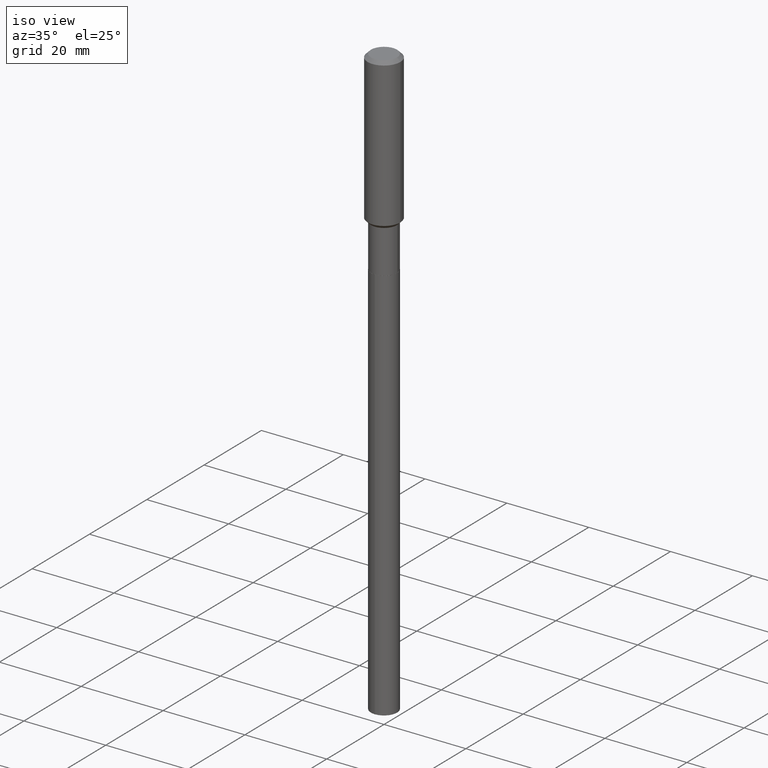
[diagram: clean part render]
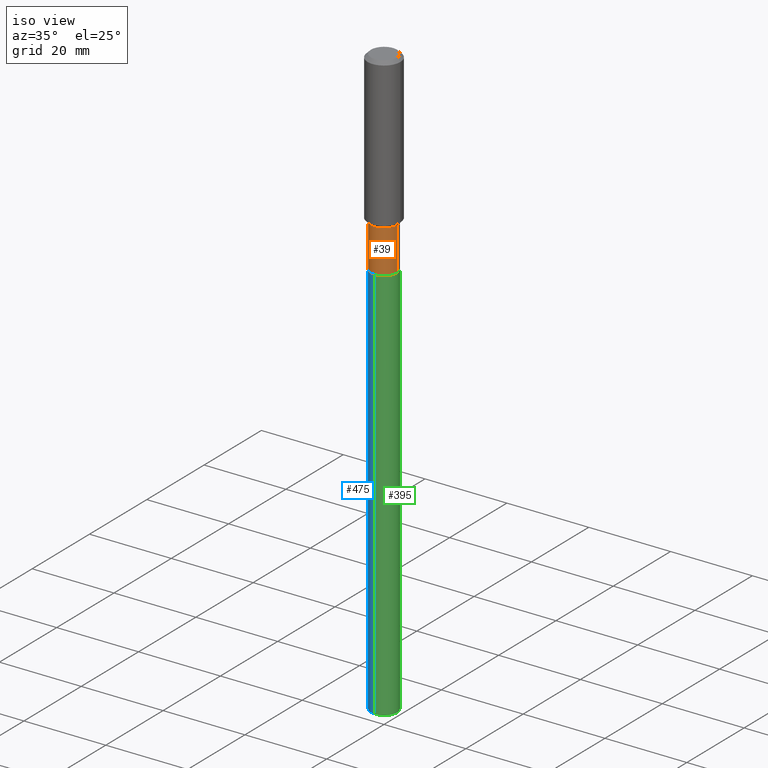
[diagram: same view with three faces highlighted in distinct colors, each labeled with its STEP entity id]
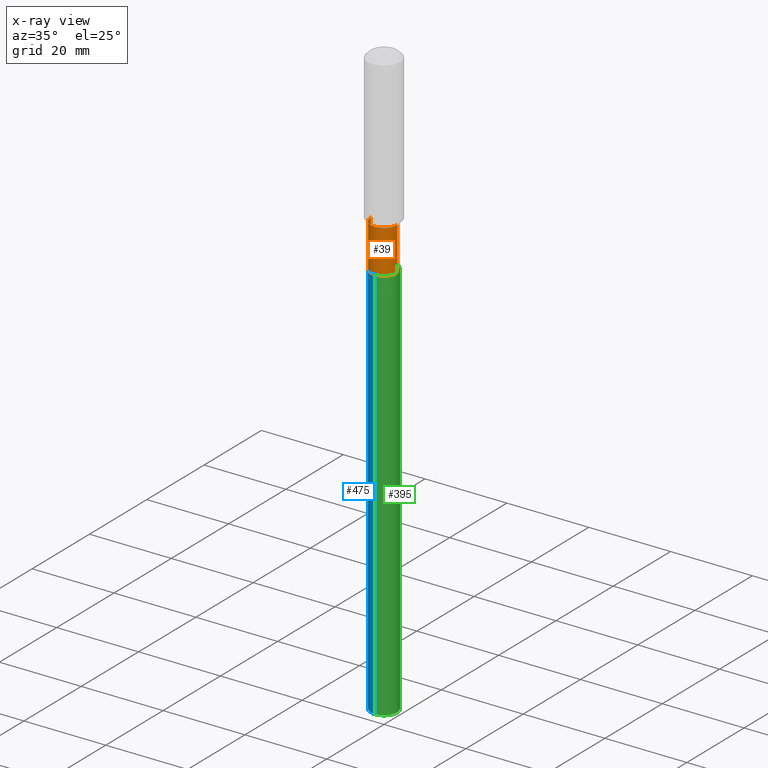
[diagram: x-ray of the same camera — body ghosted, the three highlighted faces saturated]
A machine part, iso view with three faces highlighted in distinct colors.
The next image is the same camera in x-ray (body ghosted, the three faces saturated) — at least one of them is partly hidden behind the body in this view.
Their STEP definitions:

[orange] entity #39 — the highlighted cylindrical surface (edge-blend (fillet) strip) has radius 3.2004 mm, axis along (-0, 0, 1).
#16 = EDGE_CURVE ( 'NONE', #255, #277, #411, .T. ) ;
#26 = DIRECTION ( 'NONE',  ( -2.445468806185136597E-29, 3.491481338843145583E-15, 1.000000000000000000 ) ) ;
#27 = AXIS2_PLACEMENT_3D ( 'NONE', #290, #328, #212 ) ;
#39 = ADVANCED_FACE ( 'NONE', ( #402 ), #476, .T. ) ;
#45 = EDGE_LOOP ( 'NONE', ( #265, #252, #458, #98 ) ) ;
#65 = DIRECTION ( 'NONE',  ( 1.000000000000000000, -6.982962677686262766E-15, 0.000000000000000000 ) ) ;
#66 = CARTESIAN_POINT ( 'NONE',  ( 0.1259999999999999454, -5.971131385689545098E-15, -1.458200000000000385 ) ) ;
#71 = EDGE_CURVE ( 'NONE', #159, #357, #125, .T. ) ;
#79 = CARTESIAN_POINT ( 'NONE',  ( 0.1259999999999999731, -8.798532973884693531E-16, 6.143982737502877445E-30 ) ) ;
#98 = ORIENTED_EDGE ( 'NONE', *, *, #71, .F. ) ;
#104 = DIRECTION ( 'NONE',  ( 1.000000000000000000, -6.982962677686265922E-15, 4.876176775795935793E-29 ) ) ;
#107 = AXIS2_PLACEMENT_3D ( 'NONE', #409, #26, #104 ) ;
#125 = CIRCLE ( 'NONE', #27, 0.1259999999999999454 ) ;
#159 = VERTEX_POINT ( 'NONE', #191 ) ;
#162 = LINE ( 'NONE', #79, #331 ) ;
#168 = VECTOR ( 'NONE', #254, 39.37007874015748143 ) ;
#174 = CARTESIAN_POINT ( 'NONE',  ( -0.1260000000000000009, -4.921174915321071275E-15, -1.873600000000000154 ) ) ;
#191 = CARTESIAN_POINT ( 'NONE',  ( -0.1259999999999999454, -4.921174915321071275E-15, -1.458200000000000385 ) ) ;
#212 = DIRECTION ( 'NONE',  ( 1.000000000000000000, -6.982962677686265922E-15, 0.000000000000000000 ) ) ;
#228 = AXIS2_PLACEMENT_3D ( 'NONE', #244, #431, #65 ) ;
#244 = CARTESIAN_POINT ( 'NONE',  ( 4.581830355268472060E-29, -6.541639436456518497E-15, -1.873600000000000154 ) ) ;
#252 = ORIENTED_EDGE ( 'NONE', *, *, #16, .T. ) ;
#254 = DIRECTION ( 'NONE',  ( -2.445468806185136877E-29, 3.491481338843145188E-15, 1.000000000000000000 ) ) ;
#255 = VERTEX_POINT ( 'NONE', #174 ) ;
#265 = ORIENTED_EDGE ( 'NONE', *, *, #284, .F. ) ;
#277 = VERTEX_POINT ( 'NONE', #399 ) ;
#284 = EDGE_CURVE ( 'NONE', #255, #159, #408, .T. ) ;
#290 = CARTESIAN_POINT ( 'NONE',  ( 3.565982613179166758E-29, -5.091278088301075745E-15, -1.458200000000000385 ) ) ;
#299 = CARTESIAN_POINT ( 'NONE',  ( -0.1259999999999999731, 8.952838470577260433E-16, -6.197858213721179906E-30 ) ) ;
#309 = DIRECTION ( 'NONE',  ( -2.445468806185136877E-29, 3.491481338843145188E-15, 1.000000000000000000 ) ) ;
#328 = DIRECTION ( 'NONE',  ( -2.445468806185136597E-29, 3.491481338843145583E-15, 1.000000000000000000 ) ) ;
#331 = VECTOR ( 'NONE', #309, 39.37007874015748143 ) ;
#357 = VERTEX_POINT ( 'NONE', #66 ) ;
#399 = CARTESIAN_POINT ( 'NONE',  ( 0.1260000000000000009, -7.421492733844987850E-15, -1.873600000000000154 ) ) ;
#402 = FACE_OUTER_BOUND ( 'NONE', #45, .T. ) ;
#408 = LINE ( 'NONE', #299, #168 ) ;
#409 = CARTESIAN_POINT ( 'NONE',  ( 0.000000000000000000, 0.000000000000000000, 0.000000000000000000 ) ) ;
#411 = CIRCLE ( 'NONE', #228, 0.1260000000000000009 ) ;
#431 = DIRECTION ( 'NONE',  ( -2.445468806185136597E-29, 3.491481338843145583E-15, 1.000000000000000000 ) ) ;
#458 = ORIENTED_EDGE ( 'NONE', *, *, #480, .T. ) ;
#476 = CYLINDRICAL_SURFACE ( 'NONE', #107, 0.1259999999999999731 ) ;
#480 = EDGE_CURVE ( 'NONE', #277, #357, #162, .T. ) ;

[blue] entity #475 — the highlighted cylindrical surface (edge-blend (fillet) strip) has radius 3.2004 mm, axis along (-0, 0, 1).
#10 = VERTEX_POINT ( 'NONE', #439 ) ;
#25 = DIRECTION ( 'NONE',  ( -2.445505131689161553E-29, 3.491429318653862647E-15, 1.000000000000000000 ) ) ;
#75 = CYLINDRICAL_SURFACE ( 'NONE', #189, 0.1260000000000000009 ) ;
#88 = VERTEX_POINT ( 'NONE', #370 ) ;
#101 = EDGE_CURVE ( 'NONE', #279, #10, #197, .T. ) ;
#105 = LINE ( 'NONE', #294, #276 ) ;
#116 = ORIENTED_EDGE ( 'NONE', *, *, #101, .T. ) ;
#144 = CARTESIAN_POINT ( 'NONE',  ( -8.798532973884236978E-16, -0.1260000000000065512, -1.874099999999999655 ) ) ;
#149 = CIRCLE ( 'NONE', #488, 0.1260000000000000009 ) ;
#166 = ORIENTED_EDGE ( 'NONE', *, *, #319, .F. ) ;
#180 = DIRECTION ( 'NONE',  ( -2.445505131689161553E-29, 3.491429318653862647E-15, 1.000000000000000000 ) ) ;
#186 = FACE_OUTER_BOUND ( 'NONE', #426, .T. ) ;
#189 = AXIS2_PLACEMENT_3D ( 'NONE', #230, #25, #456 ) ;
#197 = CIRCLE ( 'NONE', #314, 0.1260000000000000009 ) ;
#200 = ORIENTED_EDGE ( 'NONE', *, *, #422, .T. ) ;
#230 = CARTESIAN_POINT ( 'NONE',  ( 4.583053089671564861E-29, -6.543385177125940001E-15, -1.874100000000000099 ) ) ;
#259 = DIRECTION ( 'NONE',  ( -2.445505131689161553E-29, 3.491429318653862647E-15, 1.000000000000000000 ) ) ;
#276 = VECTOR ( 'NONE', #259, 39.37007874015748143 ) ;
#279 = VERTEX_POINT ( 'NONE', #443 ) ;
#282 = VERTEX_POINT ( 'NONE', #335 ) ;
#286 = DIRECTION ( 'NONE',  ( -2.445505131689161553E-29, 3.491429318653862647E-15, 1.000000000000000000 ) ) ;
#289 = DIRECTION ( 'NONE',  ( -6.982962677686265922E-15, -1.000000000000000000, 4.336266656609941617E-15 ) ) ;
#291 = CARTESIAN_POINT ( 'NONE',  ( 4.583053089671564861E-29, -6.543385177125940001E-15, -1.874100000000000099 ) ) ;
#294 = CARTESIAN_POINT ( 'NONE',  ( 8.952838470577719944E-16, 0.1259999999999934506, -1.874100000000000543 ) ) ;
#307 = EDGE_CURVE ( 'NONE', #88, #282, #149, .T. ) ;
#308 = ORIENTED_EDGE ( 'NONE', *, *, #307, .F. ) ;
#314 = AXIS2_PLACEMENT_3D ( 'NONE', #332, #286, #434 ) ;
#319 = EDGE_CURVE ( 'NONE', #279, #88, #105, .T. ) ;
#332 = CARTESIAN_POINT ( 'NONE',  ( 1.393531834803985762E-28, -1.989554408113978401E-14, -5.698367280072516472 ) ) ;
#335 = CARTESIAN_POINT ( 'NONE',  ( -8.798532973884236978E-16, -0.1260000000000065512, -1.874099999999999655 ) ) ;
#342 = VECTOR ( 'NONE', #445, 39.37007874015748143 ) ;
#370 = CARTESIAN_POINT ( 'NONE',  ( 8.952838470578662633E-16, 0.1259999999999934783, -1.874100000000000543 ) ) ;
#422 = EDGE_CURVE ( 'NONE', #10, #282, #483, .T. ) ;
#426 = EDGE_LOOP ( 'NONE', ( #166, #116, #200, #308 ) ) ;
#434 = DIRECTION ( 'NONE',  ( -6.982962677686265922E-15, -1.000000000000000000, 0.000000000000000000 ) ) ;
#439 = CARTESIAN_POINT ( 'NONE',  ( -8.798532973883302178E-16, -0.1260000000000199016, -5.698367280072516472 ) ) ;
#443 = CARTESIAN_POINT ( 'NONE',  ( 8.952838470578656717E-16, 0.1259999999999801279, -5.698367280072516472 ) ) ;
#445 = DIRECTION ( 'NONE',  ( -2.445505131689161553E-29, 3.491429318653862647E-15, 1.000000000000000000 ) ) ;
#456 = DIRECTION ( 'NONE',  ( -6.982962677686265922E-15, -1.000000000000000000, 4.336266656609941617E-15 ) ) ;
#475 = ADVANCED_FACE ( 'NONE', ( #186 ), #75, .T. ) ;
#483 = LINE ( 'NONE', #144, #342 ) ;
#488 = AXIS2_PLACEMENT_3D ( 'NONE', #291, #180, #289 ) ;

[green] entity #395 — the highlighted cylindrical surface (edge-blend (fillet) strip) has radius 3.2004 mm, axis along (-0, 0, 1).
#10 = VERTEX_POINT ( 'NONE', #439 ) ;
#28 = DIRECTION ( 'NONE',  ( -6.982962677686265922E-15, -1.000000000000000000, 4.336266656609941617E-15 ) ) ;
#31 = DIRECTION ( 'NONE',  ( -2.445505131689161553E-29, 3.491429318653862647E-15, 1.000000000000000000 ) ) ;
#34 = CARTESIAN_POINT ( 'NONE',  ( 1.393531834803985762E-28, -1.989554408113978401E-14, -5.698367280072516472 ) ) ;
#60 = AXIS2_PLACEMENT_3D ( 'NONE', #371, #31, #28 ) ;
#72 = CYLINDRICAL_SURFACE ( 'NONE', #60, 0.1260000000000000009 ) ;
#85 = ORIENTED_EDGE ( 'NONE', *, *, #422, .F. ) ;
#88 = VERTEX_POINT ( 'NONE', #370 ) ;
#105 = LINE ( 'NONE', #294, #276 ) ;
#132 = ORIENTED_EDGE ( 'NONE', *, *, #441, .F. ) ;
#144 = CARTESIAN_POINT ( 'NONE',  ( -8.798532973884236978E-16, -0.1260000000000065512, -1.874099999999999655 ) ) ;
#165 = ORIENTED_EDGE ( 'NONE', *, *, #355, .T. ) ;
#224 = DIRECTION ( 'NONE',  ( -6.982962677686265922E-15, -1.000000000000000000, 0.000000000000000000 ) ) ;
#225 = DIRECTION ( 'NONE',  ( -2.445505131689161553E-29, 3.491429318653862647E-15, 1.000000000000000000 ) ) ;
#259 = DIRECTION ( 'NONE',  ( -2.445505131689161553E-29, 3.491429318653862647E-15, 1.000000000000000000 ) ) ;
#260 = FACE_OUTER_BOUND ( 'NONE', #310, .T. ) ;
#276 = VECTOR ( 'NONE', #259, 39.37007874015748143 ) ;
#279 = VERTEX_POINT ( 'NONE', #443 ) ;
#280 = ORIENTED_EDGE ( 'NONE', *, *, #319, .T. ) ;
#282 = VERTEX_POINT ( 'NONE', #335 ) ;
#294 = CARTESIAN_POINT ( 'NONE',  ( 8.952838470577719944E-16, 0.1259999999999934506, -1.874100000000000543 ) ) ;
#310 = EDGE_LOOP ( 'NONE', ( #165, #280, #132, #85 ) ) ;
#319 = EDGE_CURVE ( 'NONE', #279, #88, #105, .T. ) ;
#335 = CARTESIAN_POINT ( 'NONE',  ( -8.798532973884236978E-16, -0.1260000000000065512, -1.874099999999999655 ) ) ;
#342 = VECTOR ( 'NONE', #445, 39.37007874015748143 ) ;
#343 = CARTESIAN_POINT ( 'NONE',  ( 4.583053089671564861E-29, -6.543385177125940001E-15, -1.874100000000000099 ) ) ;
#355 = EDGE_CURVE ( 'NONE', #10, #279, #412, .T. ) ;
#363 = AXIS2_PLACEMENT_3D ( 'NONE', #34, #449, #224 ) ;
#370 = CARTESIAN_POINT ( 'NONE',  ( 8.952838470578662633E-16, 0.1259999999999934783, -1.874100000000000543 ) ) ;
#371 = CARTESIAN_POINT ( 'NONE',  ( 4.583053089671564861E-29, -6.543385177125940001E-15, -1.874100000000000099 ) ) ;
#395 = ADVANCED_FACE ( 'NONE', ( #260 ), #72, .T. ) ;
#412 = CIRCLE ( 'NONE', #363, 0.1260000000000000009 ) ;
#422 = EDGE_CURVE ( 'NONE', #10, #282, #483, .T. ) ;
#425 = CIRCLE ( 'NONE', #471, 0.1260000000000000009 ) ;
#439 = CARTESIAN_POINT ( 'NONE',  ( -8.798532973883302178E-16, -0.1260000000000199016, -5.698367280072516472 ) ) ;
#441 = EDGE_CURVE ( 'NONE', #282, #88, #425, .T. ) ;
#443 = CARTESIAN_POINT ( 'NONE',  ( 8.952838470578656717E-16, 0.1259999999999801279, -5.698367280072516472 ) ) ;
#445 = DIRECTION ( 'NONE',  ( -2.445505131689161553E-29, 3.491429318653862647E-15, 1.000000000000000000 ) ) ;
#449 = DIRECTION ( 'NONE',  ( -2.445505131689161553E-29, 3.491429318653862647E-15, 1.000000000000000000 ) ) ;
#471 = AXIS2_PLACEMENT_3D ( 'NONE', #343, #225, #484 ) ;
#483 = LINE ( 'NONE', #144, #342 ) ;
#484 = DIRECTION ( 'NONE',  ( -6.982962677686265922E-15, -1.000000000000000000, 4.336266656609941617E-15 ) ) ;